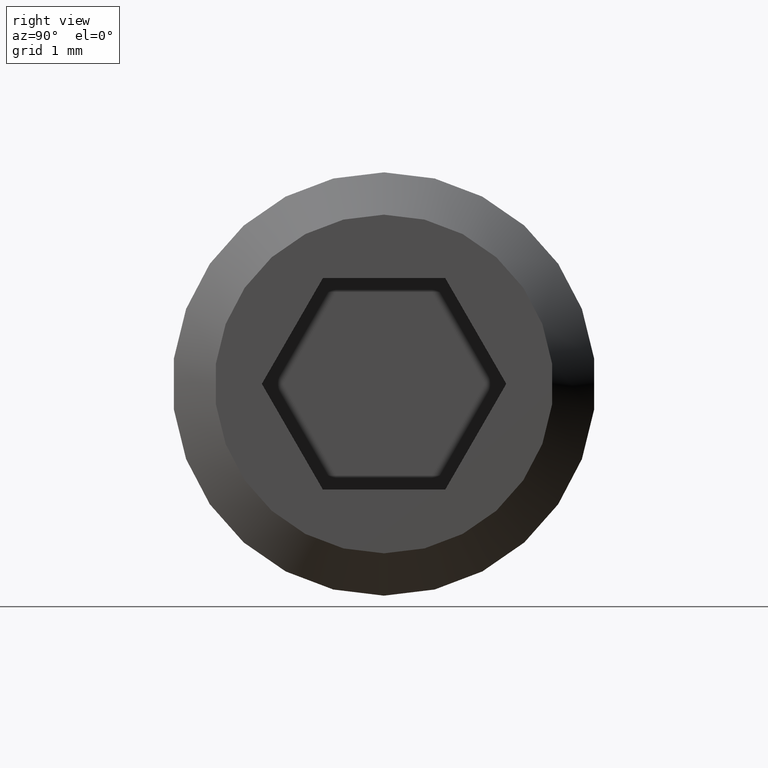
[diagram: clean part render]
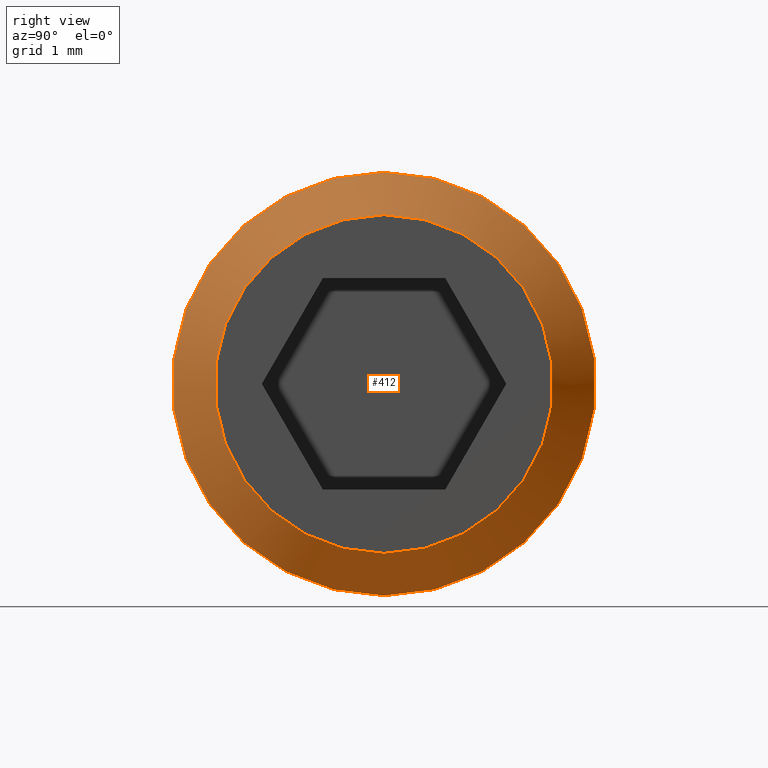
[diagram: same view with one face highlighted and labeled with its STEP entity id]
A machine part, right view. The second image highlights one B-rep face of the part: STEP entity #412.
In plain terms, the highlighted conical surface has half-angle 45 deg.
Its self-contained STEP definition (entity closure, byte-faithful):
#412 = ADVANCED_FACE ( 'NONE', ( #1567, #3510 ), #2086, .T. ) ;
#511 = DIRECTION ( 'NONE',  ( 1.000000000000000000, 0.0000000000000000000, 0.0000000000000000000 ) ) ;
#638 = DIRECTION ( 'NONE',  ( 0.0000000000000000000, 0.0000000000000000000, -1.000000000000000000 ) ) ;
#1191 = CARTESIAN_POINT ( 'NONE',  ( 6.000000000000000000, 0.0000000000000000000, 0.0000000000000000000 ) ) ;
#1378 = AXIS2_PLACEMENT_3D ( 'NONE', #3950, #8122, #638 ) ;
#1567 = FACE_OUTER_BOUND ( 'NONE', #6094, .T. ) ;
#2086 = CONICAL_SURFACE ( 'NONE', #10053, 2.400000000000001200, 0.7853981633974465000 ) ;
#2183 = CIRCLE ( 'NONE', #1378, 3.000000000000000400 ) ;
#3115 = ORIENTED_EDGE ( 'NONE', *, *, #5379, .F. ) ;
#3510 = FACE_BOUND ( 'NONE', #5746, .T. ) ;
#3950 = CARTESIAN_POINT ( 'NONE',  ( 5.399999999999998600, 0.0000000000000000000, 0.0000000000000000000 ) ) ;
#4614 = CARTESIAN_POINT ( 'NONE',  ( 6.000000000000000000, 0.0000000000000000000, 0.0000000000000000000 ) ) ;
#4832 = ORIENTED_EDGE ( 'NONE', *, *, #9299, .F. ) ;
#4873 = AXIS2_PLACEMENT_3D ( 'NONE', #4614, #511, #8888 ) ;
#5076 = CARTESIAN_POINT ( 'NONE',  ( 6.000000000000000000, 0.0000000000000000000, -2.400000000000001200 ) ) ;
#5379 = EDGE_CURVE ( 'NONE', #9236, #9236, #2183, .T. ) ;
#5746 = EDGE_LOOP ( 'NONE', ( #4832 ) ) ;
#6094 = EDGE_LOOP ( 'NONE', ( #3115 ) ) ;
#7486 = CARTESIAN_POINT ( 'NONE',  ( 5.399999999999998600, 0.0000000000000000000, -3.000000000000000400 ) ) ;
#8122 = DIRECTION ( 'NONE',  ( -1.000000000000000000, 0.0000000000000000000, 0.0000000000000000000 ) ) ;
#8853 = CIRCLE ( 'NONE', #4873, 2.400000000000001200 ) ;
#8888 = DIRECTION ( 'NONE',  ( 0.0000000000000000000, 0.0000000000000000000, -1.000000000000000000 ) ) ;
#9236 = VERTEX_POINT ( 'NONE', #7486 ) ;
#9299 = EDGE_CURVE ( 'NONE', #10140, #10140, #8853, .T. ) ;
#9564 = DIRECTION ( 'NONE',  ( -1.000000000000000000, 0.0000000000000000000, 0.0000000000000000000 ) ) ;
#10053 = AXIS2_PLACEMENT_3D ( 'NONE', #1191, #9564, #10395 ) ;
#10140 = VERTEX_POINT ( 'NONE', #5076 ) ;
#10395 = DIRECTION ( 'NONE',  ( 0.0000000000000000000, 0.0000000000000000000, 1.000000000000000000 ) ) ;